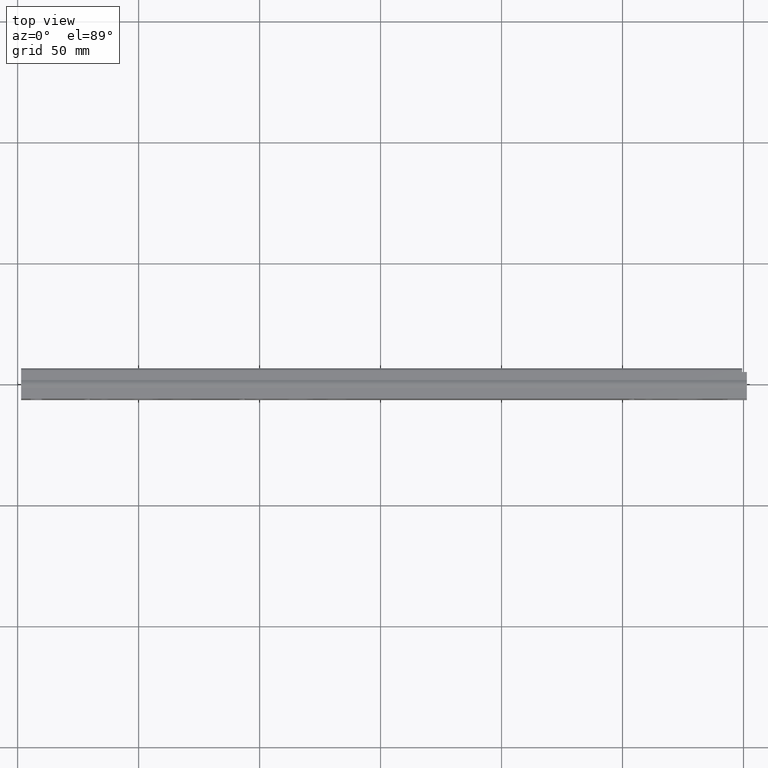
[diagram: clean part render]
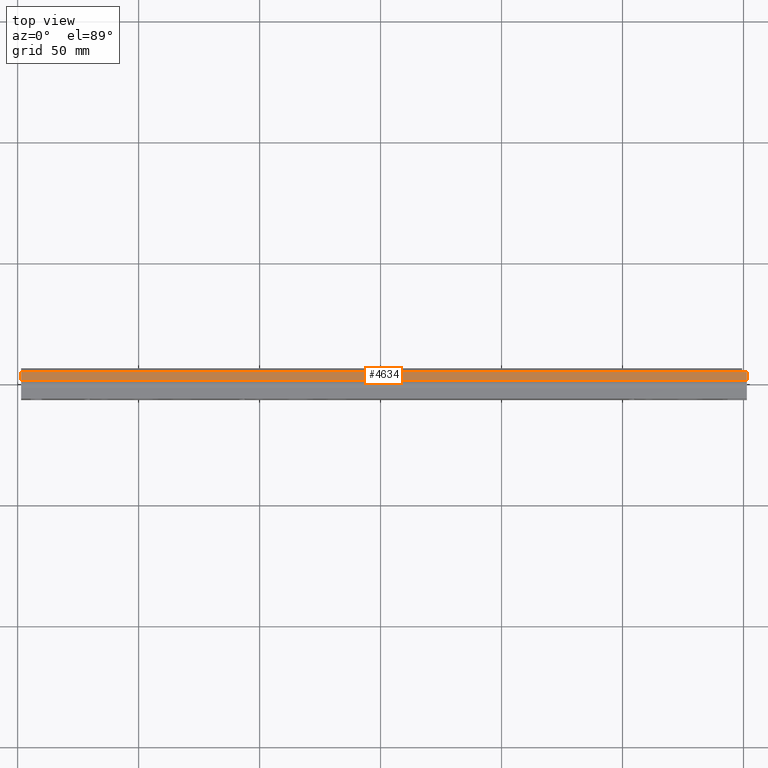
[diagram: same view with one face highlighted and labeled with its STEP entity id]
A machine part, top view. The second image highlights one B-rep face of the part: STEP entity #4634.
In plain terms, the highlighted planar face has unit normal (0, 0, 1).
Its self-contained STEP definition (entity closure, byte-faithful):
#309=FACE_OUTER_BOUND('',#582,.T.);
#582=EDGE_LOOP('',(#3628,#3629,#3630,#3631));
#879=LINE('',#6981,#1369);
#968=LINE('',#7174,#1458);
#975=LINE('',#7189,#1465);
#976=LINE('',#7191,#1466);
#1369=VECTOR('',#5537,3.35000000000001);
#1458=VECTOR('',#5794,3.35000000000001);
#1465=VECTOR('',#5807,300.);
#1466=VECTOR('',#5810,300.);
#2099=VERTEX_POINT('',#6978);
#2100=VERTEX_POINT('',#6980);
#2119=VERTEX_POINT('',#7171);
#2120=VERTEX_POINT('',#7173);
#2572=EDGE_CURVE('',#2099,#2100,#879,.T.);
#2667=EDGE_CURVE('',#2119,#2120,#968,.T.);
#2675=EDGE_CURVE('',#2119,#2100,#975,.T.);
#2676=EDGE_CURVE('',#2120,#2099,#976,.T.);
#3628=ORIENTED_EDGE('',*,*,#2675,.T.);
#3629=ORIENTED_EDGE('',*,*,#2572,.F.);
#3630=ORIENTED_EDGE('',*,*,#2676,.F.);
#3631=ORIENTED_EDGE('',*,*,#2667,.F.);
#4444=PLANE('',#4965);
#4634=ADVANCED_FACE('',(#309),#4444,.T.);
#4965=AXIS2_PLACEMENT_3D('',#7190,#5808,#5809);
#5537=DIRECTION('',(0.,-1.,6.62819716194122E-16));
#5794=DIRECTION('',(0.,1.,-6.62819716194122E-16));
#5807=DIRECTION('',(1.,0.,0.));
#5808=DIRECTION('center_axis',(0.,6.62819716194122E-16,1.));
#5809=DIRECTION('ref_axis',(0.,-1.,7.105427357601E-16));
#5810=DIRECTION('',(1.,0.,0.));
#6978=CARTESIAN_POINT('',(150.,11.,17.));
#6980=CARTESIAN_POINT('',(150.,7.65,17.));
#6981=CARTESIAN_POINT('',(150.,11.,17.));
#7171=CARTESIAN_POINT('',(-150.,7.65,17.));
#7173=CARTESIAN_POINT('',(-150.,11.,17.));
#7174=CARTESIAN_POINT('',(-150.,11.,17.));
#7189=CARTESIAN_POINT('',(0.,7.65,17.));
#7190=CARTESIAN_POINT('Origin',(0.,11.,17.));
#7191=CARTESIAN_POINT('',(0.,11.,17.));